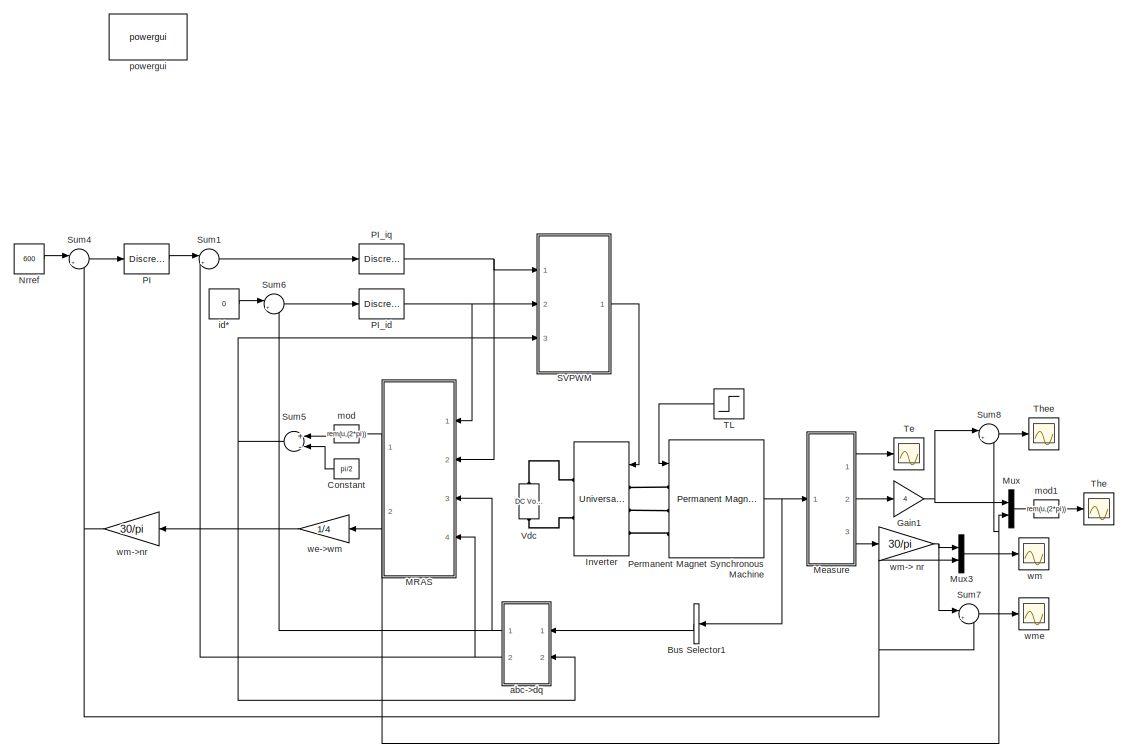
[diagram: root canvas - part 1/2, left side, full height]
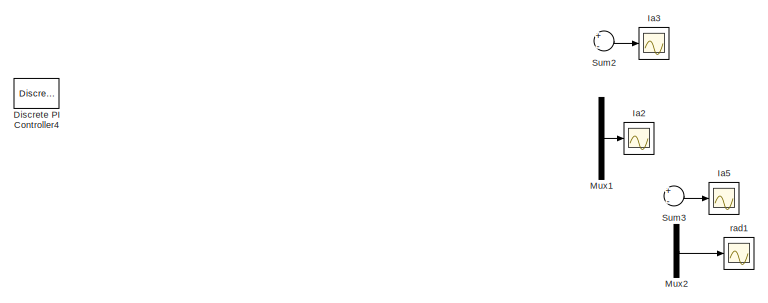
[diagram: root canvas - part 2/2, middle right region]
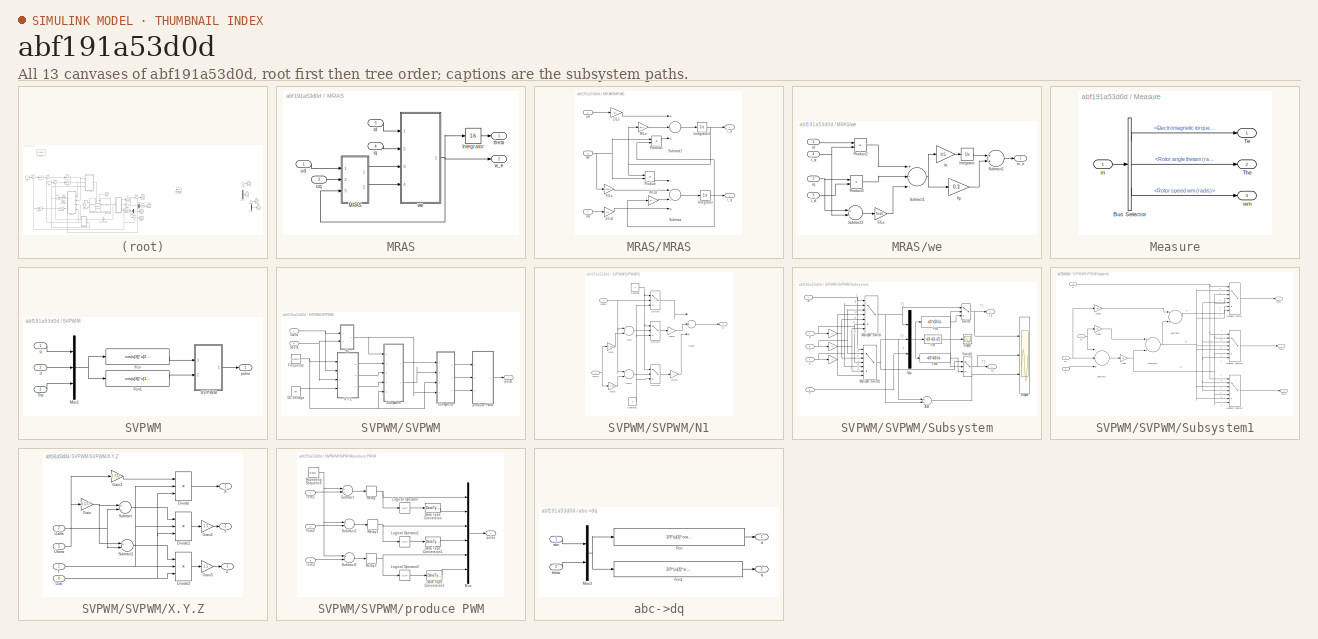
[diagram: thumbnail index - all 13 canvases of the model, root first then tree order]
MODEL slx_abf191a53d0d
KIND model
CONFIG InitFcn = L=8.5e-3;\nR=2.875;\nflux=0.175;
BLOCK [BusSelector] Bus Selector1
  OutputAsBus = on
  OutputSignals = Stator current is_a (A),Stator current is_b (A),Stator current is_c (A)
  Ports = [1, 1]
BLOCK [Constant] Constant
  Value = pi/2
BLOCK [Reference] Discrete PI Controller4  REF=powerlib_extras/Discrete 
Control Blocks/Discrete
PI Controller
  Init = 0
  Ki = 1000*4
  Kp = 1*15
  Par_Limits = [1000 -1000]
  Ports = [1, 1]
  SourceBlock = powerlib_extras/Discrete \nControl Blocks/Discrete\nPI Controller
  SourceType = Discrete PI Controller
  Ts = 10e-6
BLOCK [Gain] Gain1
  Gain = 4
  OutDataTypeStr = Inherit: Inherit via internal rule
  ParamDataTypeStr = Inherit: Inherit via internal rule
  SaturateOnIntegerOverflow = off
BLOCK [Scope] Ia2
  DataFormat = StructureWithTime
  Floating = off
  LimitDataPoints = off
  NumInputPorts = 1
  Ports = [1]
  SampleTime = 0
  SaveName = ScopeData6
  ShowLegends = off
  TimeRange = 0.1
  YMax = 6.5
  YMin = -2
  ZoomMode = xonly
BLOCK [Scope] Ia3
  DataFormat = StructureWithTime
  Floating = off
  LimitDataPoints = off
  NumInputPorts = 1
  Ports = [1]
  SampleTime = 0
  SaveName = ScopeData7
  ShowLegends = off
  TimeRange = 0.1167052469135803
  YMax = 2
  YMin = -6.5
  ZoomMode = yonly
BLOCK [Scope] Ia5
  DataFormat = StructureWithTime
  Floating = off
  LimitDataPoints = off
  NumInputPorts = 1
  Ports = [1]
  SampleTime = 0
  SaveName = ScopeData11
  ShowLegends = off
  TimeRange = 0.5
  YMax = 150
  YMin = -100
  ZoomMode = yonly
BLOCK [Reference] Inverter  REF=powerlib/Power
Electronics/Universal Bridge
  Arms = 3
  Device = IGBT / Diodes
  ForwardVoltage = 0
  ForwardVoltages = [  0  0  ]
  GTOparameters = [ 10e-6 , 20e-6 ]
  IGBTparameters = [ 1e-6 , 2e-6 ]
  Lon = 0
  Measurements = None
  Measurements_2 = None
  Ports = [1, 0, 0, 0, 0, 3, 2]
  Ron = 1e-3
  SnubberCapacitance = inf
  SnubberResistance = 1e5
  SourceBlock = powerlib/Power\nElectronics/Universal Bridge
  SourceType = Universal Bridge
  converterType = Rectifier
BLOCK [SubSystem] MRAS
  Ports = [4, 2]
  RequestExecContextInheritance = off
BLOCK [Integrator] MRAS/Integrator
  Ports = [1, 1]
BLOCK [SubSystem] MRAS/MRAS
  Ports = [3, 2]
  RequestExecContextInheritance = off
BLOCK [Gain] MRAS/MRAS/1//Ls
  Gain = 1/L
  OutDataTypeStr = Inherit: Inherit via internal rule
  ParamDataTypeStr = Inherit: Inherit via internal rule
  SaturateOnIntegerOverflow = off
BLOCK [Gain] MRAS/MRAS/1//Ls1
  Gain = 1/L
  OutDataTypeStr = Inherit: Inherit via internal rule
  ParamDataTypeStr = Inherit: Inherit via internal rule
  SaturateOnIntegerOverflow = off
BLOCK [Gain] MRAS/MRAS/F//Ls
  Gain = flux/L
  OutDataTypeStr = Inherit: Inherit via internal rule
  ParamDataTypeStr = Inherit: Inherit via internal rule
  SaturateOnIntegerOverflow = off
BLOCK [Integrator] MRAS/MRAS/Integrator
  Ports = [1, 1]
BLOCK [Integrator] MRAS/MRAS/Integrator1
  Ports = [1, 1]
BLOCK [Product] MRAS/MRAS/Product
  InputSameDT = off
  OutDataTypeStr = Inherit: Inherit via internal rule
  Ports = [2, 1]
  SaturateOnIntegerOverflow = off
BLOCK [Product] MRAS/MRAS/Product1
  InputSameDT = off
  OutDataTypeStr = Inherit: Inherit via internal rule
  Ports = [2, 1]
  SaturateOnIntegerOverflow = off
BLOCK [Gain] MRAS/MRAS/R//Ls
  Gain = R/L
  OutDataTypeStr = Inherit: Inherit via internal rule
  ParamDataTypeStr = Inherit: Inherit via internal rule
  SaturateOnIntegerOverflow = off
BLOCK [Gain] MRAS/MRAS/R//Ls1
  Gain = R/L
  OutDataTypeStr = Inherit: Inherit via internal rule
  ParamDataTypeStr = Inherit: Inherit via internal rule
  SaturateOnIntegerOverflow = off
BLOCK [Sum] MRAS/MRAS/Subtract
  InputSameDT = off
  Inputs = ---+
  OutDataTypeStr = Inherit: Inherit via internal rule
  Ports = [4, 1]
  SaturateOnIntegerOverflow = off
BLOCK [Sum] MRAS/MRAS/Subtract1
  InputSameDT = off
  Inputs = +-+
  OutDataTypeStr = Inherit: Inherit via internal rule
  Ports = [3, 1]
  SaturateOnIntegerOverflow = off
BLOCK [Outport] MRAS/MRAS/i_d
  IconDisplay = Port number
BLOCK [Outport] MRAS/MRAS/i_q
  IconDisplay = Port number
  Port = 2
BLOCK [Inport] MRAS/MRAS/ud
  IconDisplay = Port number
BLOCK [Inport] MRAS/MRAS/uq
  IconDisplay = Port number
  Port = 2
BLOCK [Inport] MRAS/MRAS/we
  IconDisplay = Port number
  Port = 3
BLOCK [Inport] MRAS/id
  IconDisplay = Port number
  Port = 3
BLOCK [Inport] MRAS/iq
  IconDisplay = Port number
  Port = 4
BLOCK [Outport] MRAS/theta
  IconDisplay = Port number
BLOCK [Inport] MRAS/ud
  IconDisplay = Port number
BLOCK [Inport] MRAS/uq
  IconDisplay = Port number
  Port = 2
BLOCK [Outport] MRAS/w_e
  IconDisplay = Port number
  Port = 2
BLOCK [SubSystem] MRAS/we
  Ports = [4, 1]
  RequestExecContextInheritance = off
BLOCK [Gain] MRAS/we/F//Ls
  Gain = flux/L
  OutDataTypeStr = Inherit: Inherit via internal rule
  ParamDataTypeStr = Inherit: Inherit via internal rule
  SaturateOnIntegerOverflow = off
BLOCK [Integrator] MRAS/we/Integrator
  Ports = [1, 1]
BLOCK [Gain] MRAS/we/Ki
  Gain = 0.5
  OutDataTypeStr = Inherit: Inherit via internal rule
  ParamDataTypeStr = Inherit: Inherit via internal rule
  SaturateOnIntegerOverflow = off
BLOCK [Gain] MRAS/we/Kp
  Gain = 0.3
  OutDataTypeStr = Inherit: Inherit via internal rule
  ParamDataTypeStr = Inherit: Inherit via internal rule
  SaturateOnIntegerOverflow = off
BLOCK [Product] MRAS/we/Product2
  InputSameDT = off
  OutDataTypeStr = Inherit: Inherit via internal rule
  Ports = [2, 1]
  SaturateOnIntegerOverflow = off
BLOCK [Product] MRAS/we/Product3
  InputSameDT = off
  OutDataTypeStr = Inherit: Inherit via internal rule
  Ports = [2, 1]
  SaturateOnIntegerOverflow = off
BLOCK [Sum] MRAS/we/Subtract1
  InputSameDT = off
  Inputs = +--
  OutDataTypeStr = Inherit: Inherit via internal rule
  Ports = [3, 1]
  SaturateOnIntegerOverflow = off
BLOCK [Sum] MRAS/we/Subtract2
  InputSameDT = off
  OutDataTypeStr = Inherit: Inherit via internal rule
  Ports = [2, 1]
  SaturateOnIntegerOverflow = off
BLOCK [Sum] MRAS/we/Subtract3
  InputSameDT = off
  Inputs = +-
  OutDataTypeStr = Inherit: Inherit via internal rule
  Ports = [2, 1]
  SaturateOnIntegerOverflow = off
BLOCK [Inport] MRAS/we/i_d
  IconDisplay = Port number
  Port = 3
BLOCK [Inport] MRAS/we/i_q
  IconDisplay = Port number
  Port = 4
BLOCK [Inport] MRAS/we/id
  IconDisplay = Port number
BLOCK [Inport] MRAS/we/iq
  IconDisplay = Port number
  Port = 2
BLOCK [Outport] MRAS/we/w_e
  IconDisplay = Port number
BLOCK [SubSystem] Measure
  Ports = [1, 3]
  RequestExecContextInheritance = off
BLOCK [BusSelector] Measure/Bus Selector
  OutputSignals = Electromagnetic torque Te (N*m),Rotor angle thetam (rad),Rotor speed wm (rad/s)
  Ports = [1, 3]
BLOCK [Outport] Measure/Te
  IconDisplay = Port number
BLOCK [Outport] Measure/The
  IconDisplay = Port number
  Port = 2
BLOCK [Inport] Measure/m
  IconDisplay = Port number
BLOCK [Outport] Measure/wm
  IconDisplay = Port number
  Port = 3
BLOCK [Mux] Mux
  DisplayOption = bar
  Inputs = 2
  Ports = [2, 1]
BLOCK [Mux] Mux1
  DisplayOption = bar
  Inputs = 2
  Ports = [2, 1]
BLOCK [Mux] Mux2
  DisplayOption = bar
  Inputs = 2
  Ports = [2, 1]
BLOCK [Mux] Mux3
  DisplayOption = bar
  Inputs = 2
  Ports = [2, 1]
BLOCK [Constant] Nrref
  Value = 600
BLOCK [Reference] PI  REF=powerlib_extras/Discrete 
Control Blocks/Discrete
PI Controller
  Init = 0
  Ki = 17.1
  Kp = 0.068
  Par_Limits = [100 -100]
  Ports = [1, 1]
  SourceBlock = powerlib_extras/Discrete \nControl Blocks/Discrete\nPI Controller
  SourceType = Discrete PI Controller
  Ts = 10e-6
BLOCK [Reference] PI_id  REF=powerlib_extras/Discrete 
Control Blocks/Discrete
PI Controller
  Init = 0
  Ki = R*2000
  Kp = L*2000
  Par_Limits = [300 -300]
  Ports = [1, 1]
  SourceBlock = powerlib_extras/Discrete \nControl Blocks/Discrete\nPI Controller
  SourceType = Discrete PI Controller
  Ts = 10e-6
BLOCK [Reference] PI_iq  REF=powerlib_extras/Discrete 
Control Blocks/Discrete
PI Controller
  Init = 0
  Ki = R*2000
  Kp = L*2000
  Par_Limits = [300 -300]
  Ports = [1, 1]
  SourceBlock = powerlib_extras/Discrete \nControl Blocks/Discrete\nPI Controller
  SourceType = Discrete PI Controller
  Ts = 10e-6
BLOCK [Reference] Permanent Magnet Synchronous Machine  REF=powerlib/Machines/Permanent Magnet
Synchronous Machine
  Flat = 120
  Flux = 0.175
  FluxDistribution = Sinusoidal
  Inductance = 8.5e-3
  InitialConditions = [0,0, 0,0]
  InitialConditions5ph = [0 0 0 0 0 0]
  La = 0.00085
  MachineConstant = Flux linkage established by magnets (V.s)
  MeasurementBus = off
  Mechanical = [4.8e-6,0,4,0]
  MechanicalLoad = Torque Tm
  NbPhases = 3
  PolePairs = 4
  Ports = [1, 1, 0, 0, 0, 3]
  PresetModel = No
  RefAngle = Aligned with phase A axis (original Park)
  Resistance = 2.875
  RotorType = Salient-pole
  ShowDetailedParameters = on
  SourceBlock = powerlib/Machines/Permanent Magnet\nSynchronous Machine
  SourceType = Permanent Magnet Synchronous Machine
  TorqueCst = 1.05
  TsBlock = -1
  TsPowergui = 0
  VoltageCst = 126.966
  dqInductances = [8.5e-3 8.5e-3]
BLOCK [SubSystem] SVPWM
  Ports = [3, 1]
  RequestExecContextInheritance = off
BLOCK [Fcn] SVPWM/Fcn
  Expr = cos(u[3])*u[2]-sin(u[3])*u[1]
BLOCK [Fcn] SVPWM/Fcn1
  Expr = cos(u[3])*u[1]+sin(u[3])*u[2]
BLOCK [Mux] SVPWM/Mux1
  DisplayOption = bar
  Inputs = 3
  Ports = [3, 1]
BLOCK [SubSystem] SVPWM/SVPWM
  Ports = [2, 1]
  RequestExecContextInheritance = off
  Tag = SVPWM
BLOCK [Constant] SVPWM/SVPWM/DC Voltage
  Value = Vdc
BLOCK [Constant] SVPWM/SVPWM/Frequence
  Value = 0.001/F
BLOCK [SubSystem] SVPWM/SVPWM/N1
  Ports = [2, 1]
  RequestExecContextInheritance = off
BLOCK [Constant] SVPWM/SVPWM/N1/Constant
BLOCK [Constant] SVPWM/SVPWM/N1/Constant1
  Value = 0
BLOCK [Gain] SVPWM/SVPWM/N1/Gain
  Gain = 1.732
  OutDataTypeStr = Inherit: Inherit via internal rule
  ParamDataTypeStr = Inherit: Inherit via internal rule
  SaturateOnIntegerOverflow = off
BLOCK [Gain] SVPWM/SVPWM/N1/Gain1
  Gain = -1.732
  OutDataTypeStr = Inherit: Inherit via internal rule
  ParamDataTypeStr = Inherit: Inherit via internal rule
  SaturateOnIntegerOverflow = off
BLOCK [Gain] SVPWM/SVPWM/N1/Gain2
  Gain = 2
  OutDataTypeStr = Inherit: Inherit via internal rule
  ParamDataTypeStr = Inherit: Inherit via internal rule
  SaturateOnIntegerOverflow = off
BLOCK [Gain] SVPWM/SVPWM/N1/Gain3
  Gain = 4
  OutDataTypeStr = Inherit: Inherit via internal rule
  ParamDataTypeStr = Inherit: Inherit via internal rule
  SaturateOnIntegerOverflow = off
BLOCK [Outport] SVPWM/SVPWM/N1/N
  IconDisplay = Port number
BLOCK [Sum] SVPWM/SVPWM/N1/Sum
  InputSameDT = off
  Inputs = |-+
  OutDataTypeStr = Inherit: Inherit via internal rule
  Ports = [2, 1]
  SaturateOnIntegerOverflow = off
BLOCK [Sum] SVPWM/SVPWM/N1/Sum1
  InputSameDT = off
  Inputs = |-+
  OutDataTypeStr = Inherit: Inherit via internal rule
  Ports = [2, 1]
  SaturateOnIntegerOverflow = off
BLOCK [Sum] SVPWM/SVPWM/N1/Sum2
  InputSameDT = off
  Inputs = |+++
  OutDataTypeStr = Inherit: Inherit via internal rule
  Ports = [3, 1]
  SaturateOnIntegerOverflow = off
BLOCK [Switch] SVPWM/SVPWM/N1/Switch
  InputSameDT = off
  SaturateOnIntegerOverflow = off
BLOCK [Switch] SVPWM/SVPWM/N1/Switch1
  InputSameDT = off
  SaturateOnIntegerOverflow = off
BLOCK [Switch] SVPWM/SVPWM/N1/Switch2
  InputSameDT = off
  SaturateOnIntegerOverflow = off
BLOCK [Inport] SVPWM/SVPWM/N1/Ualfa
  IconDisplay = Port number
BLOCK [Inport] SVPWM/SVPWM/N1/Ubeta
  IconDisplay = Port number
  Port = 2
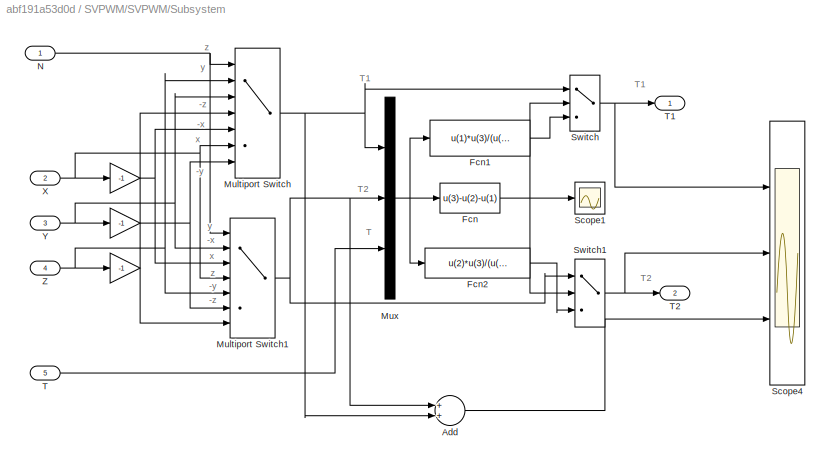
BLOCK [SubSystem] SVPWM/SVPWM/Subsystem
  Ports = [5, 2]
  RequestExecContextInheritance = off
BLOCK [Gain] SVPWM/SVPWM/Subsystem/ 
  Gain = -1
  OutDataTypeStr = Inherit: Inherit via internal rule
  ParamDataTypeStr = Inherit: Inherit via internal rule
  SaturateOnIntegerOverflow = off
BLOCK [Gain] SVPWM/SVPWM/Subsystem/  
  Gain = -1
  OutDataTypeStr = Inherit: Inherit via internal rule
  ParamDataTypeStr = Inherit: Inherit via internal rule
  SaturateOnIntegerOverflow = off
BLOCK [Gain] SVPWM/SVPWM/Subsystem/    
  Gain = -1
  OutDataTypeStr = Inherit: Inherit via internal rule
  ParamDataTypeStr = Inherit: Inherit via internal rule
  SaturateOnIntegerOverflow = off
BLOCK [Sum] SVPWM/SVPWM/Subsystem/Add
  InputSameDT = off
  OutDataTypeStr = Inherit: Inherit via internal rule
  Ports = [2, 1]
  SaturateOnIntegerOverflow = off
BLOCK [Fcn] SVPWM/SVPWM/Subsystem/Fcn
  Expr = u(3)-u(2)-u(1)
BLOCK [Fcn] SVPWM/SVPWM/Subsystem/Fcn1
  Expr = u(1)*u(3)/(u(1)+u(2))
BLOCK [Fcn] SVPWM/SVPWM/Subsystem/Fcn2
  Expr = u(2)*u(3)/(u(1)+u(2))
BLOCK [MultiPortSwitch] SVPWM/SVPWM/Subsystem/Multiport Switch
  DiagnosticForDefault = None
  InputSameDT = off
  Inputs = 6
  Ports = [7, 1]
  SaturateOnIntegerOverflow = off
BLOCK [MultiPortSwitch] SVPWM/SVPWM/Subsystem/Multiport Switch1
  DiagnosticForDefault = None
  InputSameDT = off
  Inputs = 6
  Ports = [7, 1]
  SaturateOnIntegerOverflow = off
BLOCK [Mux] SVPWM/SVPWM/Subsystem/Mux
  DisplayOption = bar
  Inputs = 3
  Ports = [3, 1]
BLOCK [Inport] SVPWM/SVPWM/Subsystem/N
  IconDisplay = Port number
BLOCK [Scope] SVPWM/SVPWM/Subsystem/Scope1
  DataFormat = StructureWithTime
  Floating = off
  LimitDataPoints = off
  NumInputPorts = 1
  Ports = [1]
  SampleTime = 0
  SaveName = ScopeData16
  ShowLegends = off
  YMax = 6
  YMin = 2
  ZoomMode = xonly
BLOCK [Scope] SVPWM/SVPWM/Subsystem/Scope4
  DataFormat = StructureWithTime
  Floating = off
  LimitDataPoints = off
  NumInputPorts = 3
  Ports = [3]
  SampleTime = 0
  SaveName = ScopeData4
  ShowLegends = off
  TimeRange = 0.5
  YMax = 9.999999999999999e-05~9.999999999999999e-05~0.008
  YMin = -5e-05~-5e-05~0
  ZoomMode = xonly
BLOCK [Switch] SVPWM/SVPWM/Subsystem/Switch
  Criteria = u2 > Threshold
  InputSameDT = off
  SaturateOnIntegerOverflow = off
BLOCK [Switch] SVPWM/SVPWM/Subsystem/Switch1
  Criteria = u2 > Threshold
  InputSameDT = off
  SaturateOnIntegerOverflow = off
BLOCK [Inport] SVPWM/SVPWM/Subsystem/T
  IconDisplay = Port number
  Port = 5
BLOCK [Outport] SVPWM/SVPWM/Subsystem/T1
  IconDisplay = Port number
BLOCK [Outport] SVPWM/SVPWM/Subsystem/T2
  IconDisplay = Port number
  Port = 2
BLOCK [Inport] SVPWM/SVPWM/Subsystem/X
  IconDisplay = Port number
  Port = 2
BLOCK [Inport] SVPWM/SVPWM/Subsystem/Y
  IconDisplay = Port number
  Port = 3
BLOCK [Inport] SVPWM/SVPWM/Subsystem/Z
  IconDisplay = Port number
  Port = 4
BLOCK [SubSystem] SVPWM/SVPWM/Subsystem1
  Ports = [4, 3]
  RequestExecContextInheritance = off
BLOCK [Gain] SVPWM/SVPWM/Subsystem1/Gain1
  Gain = 1/4
  OutDataTypeStr = Inherit: Inherit via internal rule
  ParamDataTypeStr = Inherit: Inherit via internal rule
  SaturateOnIntegerOverflow = off
BLOCK [Gain] SVPWM/SVPWM/Subsystem1/Gain2
  Gain = 0.5
  OutDataTypeStr = Inherit: Inherit via internal rule
  ParamDataTypeStr = Inherit: Inherit via internal rule
  SaturateOnIntegerOverflow = off
BLOCK [Gain] SVPWM/SVPWM/Subsystem1/Gain3
  Gain = 0.5
  OutDataTypeStr = Inherit: Inherit via internal rule
  ParamDataTypeStr = Inherit: Inherit via internal rule
  SaturateOnIntegerOverflow = off
BLOCK [MultiPortSwitch] SVPWM/SVPWM/Subsystem1/Multiport Switch
  DiagnosticForDefault = None
  InputSameDT = off
  Inputs = 6
  Ports = [7, 1]
  SaturateOnIntegerOverflow = off
BLOCK [MultiPortSwitch] SVPWM/SVPWM/Subsystem1/Multiport Switch1
  DiagnosticForDefault = None
  InputSameDT = off
  Inputs = 6
  Ports = [7, 1]
  SaturateOnIntegerOverflow = off
BLOCK [MultiPortSwitch] SVPWM/SVPWM/Subsystem1/Multiport Switch2
  DiagnosticForDefault = None
  InputSameDT = off
  Inputs = 6
  Ports = [7, 1]
  SaturateOnIntegerOverflow = off
BLOCK [Inport] SVPWM/SVPWM/Subsystem1/N
  IconDisplay = Port number
  Port = 4
BLOCK [Sum] SVPWM/SVPWM/Subsystem1/Subtract1
  InputSameDT = off
  Inputs = --+
  OutDataTypeStr = Inherit: Inherit via internal rule
  Ports = [3, 1]
  SaturateOnIntegerOverflow = off
BLOCK [Sum] SVPWM/SVPWM/Subsystem1/Subtract2
  InputSameDT = off
  OutDataTypeStr = Inherit: Inherit via internal rule
  Ports = [2, 1]
  SaturateOnIntegerOverflow = off
BLOCK [Sum] SVPWM/SVPWM/Subsystem1/Subtract3
  InputSameDT = off
  OutDataTypeStr = Inherit: Inherit via internal rule
  Ports = [2, 1]
  SaturateOnIntegerOverflow = off
BLOCK [Inport] SVPWM/SVPWM/Subsystem1/T
  IconDisplay = Port number
  Port = 3
BLOCK [Inport] SVPWM/SVPWM/Subsystem1/T1
  IconDisplay = Port number
BLOCK [Inport] SVPWM/SVPWM/Subsystem1/T2
  IconDisplay = Port number
  Port = 2
BLOCK [Outport] SVPWM/SVPWM/Subsystem1/Tcm1
  IconDisplay = Port number
BLOCK [Outport] SVPWM/SVPWM/Subsystem1/Tcm2
  IconDisplay = Port number
  Port = 2
BLOCK [Outport] SVPWM/SVPWM/Subsystem1/Tcm3
  IconDisplay = Port number
  Port = 3
BLOCK [Inport] SVPWM/SVPWM/Ualfa
  IconDisplay = Port number
BLOCK [Inport] SVPWM/SVPWM/Ubeta
  IconDisplay = Port number
  Port = 2
BLOCK [SubSystem] SVPWM/SVPWM/X.Y.Z
  Ports = [4, 3]
  RequestExecContextInheritance = off
BLOCK [Product] SVPWM/SVPWM/X.Y.Z/Divide
  InputSameDT = off
  Inputs = **/
  OutDataTypeStr = Inherit: Inherit via internal rule
  Ports = [3, 1]
  RndMeth = Floor
  SaturateOnIntegerOverflow = off
BLOCK [Product] SVPWM/SVPWM/X.Y.Z/Divide1
  InputSameDT = off
  Inputs = **/
  OutDataTypeStr = Inherit: Inherit via internal rule
  Ports = [3, 1]
  RndMeth = Floor
  SaturateOnIntegerOverflow = off
BLOCK [Product] SVPWM/SVPWM/X.Y.Z/Divide2
  InputSameDT = off
  Inputs = **/
  OutDataTypeStr = Inherit: Inherit via internal rule
  Ports = [3, 1]
  RndMeth = Floor
  SaturateOnIntegerOverflow = off
BLOCK [Gain] SVPWM/SVPWM/X.Y.Z/Gain
  Gain = 0.577
  OutDataTypeStr = Inherit: Inherit via internal rule
  ParamDataTypeStr = Inherit: Inherit via internal rule
  SaturateOnIntegerOverflow = off
BLOCK [Gain] SVPWM/SVPWM/X.Y.Z/Gain1
  Gain = 1.732
  OutDataTypeStr = Inherit: Inherit via internal rule
  ParamDataTypeStr = Inherit: Inherit via internal rule
  SaturateOnIntegerOverflow = off
BLOCK [Gain] SVPWM/SVPWM/X.Y.Z/Gain2
  Gain = 1.5
  OutDataTypeStr = Inherit: Inherit via internal rule
  ParamDataTypeStr = Inherit: Inherit via internal rule
  SaturateOnIntegerOverflow = off
BLOCK [Gain] SVPWM/SVPWM/X.Y.Z/Gain3
  Gain = 1.5
  OutDataTypeStr = Inherit: Inherit via internal rule
  ParamDataTypeStr = Inherit: Inherit via internal rule
  SaturateOnIntegerOverflow = off
BLOCK [Sum] SVPWM/SVPWM/X.Y.Z/Subtract
  InputSameDT = off
  OutDataTypeStr = Inherit: Inherit via internal rule
  Ports = [2, 1]
  SaturateOnIntegerOverflow = off
BLOCK [Sum] SVPWM/SVPWM/X.Y.Z/Subtract1
  InputSameDT = off
  Inputs = +-
  OutDataTypeStr = Inherit: Inherit via internal rule
  Ports = [2, 1]
  SaturateOnIntegerOverflow = off
BLOCK [Inport] SVPWM/SVPWM/X.Y.Z/T
  IconDisplay = Port number
BLOCK [Inport] SVPWM/SVPWM/X.Y.Z/Ualfa
  IconDisplay = Port number
  Port = 2
BLOCK [Inport] SVPWM/SVPWM/X.Y.Z/Ubeta
  IconDisplay = Port number
  Port = 3
BLOCK [Inport] SVPWM/SVPWM/X.Y.Z/Udc
  IconDisplay = Port number
  Port = 4
BLOCK [Outport] SVPWM/SVPWM/X.Y.Z/X
  IconDisplay = Port number
BLOCK [Outport] SVPWM/SVPWM/X.Y.Z/Y
  IconDisplay = Port number
  Port = 2
BLOCK [Outport] SVPWM/SVPWM/X.Y.Z/Z
  IconDisplay = Port number
  Port = 3
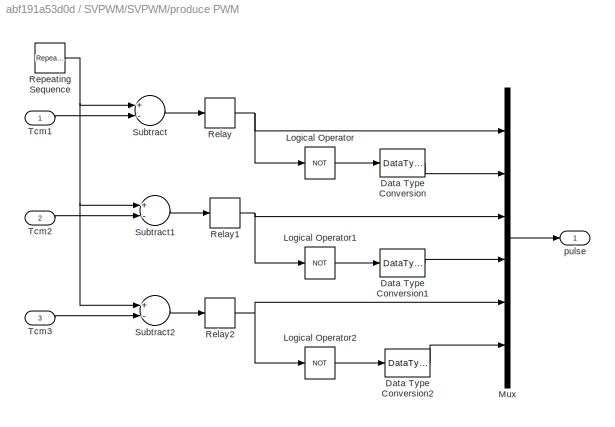
BLOCK [SubSystem] SVPWM/SVPWM/produce PWM
  Ports = [3, 1]
  RequestExecContextInheritance = off
BLOCK [DataTypeConversion] SVPWM/SVPWM/produce PWM/Data Type Conversion
  OutDataTypeStr = double
  RndMeth = Floor
  SaturateOnIntegerOverflow = off
BLOCK [DataTypeConversion] SVPWM/SVPWM/produce PWM/Data Type Conversion1
  OutDataTypeStr = double
  RndMeth = Floor
  SaturateOnIntegerOverflow = off
BLOCK [DataTypeConversion] SVPWM/SVPWM/produce PWM/Data Type Conversion2
  OutDataTypeStr = double
  RndMeth = Floor
  SaturateOnIntegerOverflow = off
BLOCK [Logic] SVPWM/SVPWM/produce PWM/Logical Operator
  AllPortsSameDT = off
  Operator = NOT
  Ports = [1, 1]
BLOCK [Logic] SVPWM/SVPWM/produce PWM/Logical Operator1
  AllPortsSameDT = off
  Operator = NOT
  Ports = [1, 1]
BLOCK [Logic] SVPWM/SVPWM/produce PWM/Logical Operator2
  AllPortsSameDT = off
  Operator = NOT
  Ports = [1, 1]
BLOCK [Mux] SVPWM/SVPWM/produce PWM/Mux
  DisplayOption = bar
  Inputs = 6
  Ports = [6, 1]
BLOCK [Relay] SVPWM/SVPWM/produce PWM/Relay
BLOCK [Relay] SVPWM/SVPWM/produce PWM/Relay1
BLOCK [Relay] SVPWM/SVPWM/produce PWM/Relay2
BLOCK [Reference] SVPWM/SVPWM/produce PWM/Repeating Sequence  REF=simulink/Sources/Repeating
Sequence
  Ports = [0, 1]
  SourceBlock = simulink/Sources/Repeating\nSequence
  SourceType = Repeating table
  rep_seq_t = [0 0.001/F 0.002/F]
  rep_seq_y = [0 0.001/F 0]
BLOCK [Sum] SVPWM/SVPWM/produce PWM/Subtract
  InputSameDT = off
  Inputs = +-
  OutDataTypeStr = Inherit: Inherit via internal rule
  Ports = [2, 1]
  SaturateOnIntegerOverflow = off
BLOCK [Sum] SVPWM/SVPWM/produce PWM/Subtract1
  InputSameDT = off
  Inputs = +-
  OutDataTypeStr = Inherit: Inherit via internal rule
  Ports = [2, 1]
  SaturateOnIntegerOverflow = off
BLOCK [Sum] SVPWM/SVPWM/produce PWM/Subtract2
  InputSameDT = off
  Inputs = +-
  OutDataTypeStr = Inherit: Inherit via internal rule
  Ports = [2, 1]
  SaturateOnIntegerOverflow = off
BLOCK [Inport] SVPWM/SVPWM/produce PWM/Tcm1
  IconDisplay = Port number
BLOCK [Inport] SVPWM/SVPWM/produce PWM/Tcm2
  IconDisplay = Port number
  Port = 2
BLOCK [Inport] SVPWM/SVPWM/produce PWM/Tcm3
  IconDisplay = Port number
  Port = 3
BLOCK [Outport] SVPWM/SVPWM/produce PWM/pulse
  IconDisplay = Port number
BLOCK [Outport] SVPWM/SVPWM/pulse
  IconDisplay = Port number
BLOCK [Inport] SVPWM/The
  IconDisplay = Port number
  Port = 3
BLOCK [Inport] SVPWM/d
  IconDisplay = Port number
  Port = 2
BLOCK [Outport] SVPWM/pulse
  IconDisplay = Port number
BLOCK [Inport] SVPWM/q
  IconDisplay = Port number
BLOCK [Sum] Sum1
  IconShape = round
  InputSameDT = off
  Inputs = |+-
  OutDataTypeStr = Inherit: Inherit via internal rule
  Ports = [2, 1]
  SaturateOnIntegerOverflow = off
BLOCK [Sum] Sum2
  InputSameDT = off
  Inputs = +-
  OutDataTypeStr = Inherit: Inherit via internal rule
  Ports = [2, 1]
  SaturateOnIntegerOverflow = off
BLOCK [Sum] Sum3
  InputSameDT = off
  Inputs = +-
  OutDataTypeStr = Inherit: Inherit via internal rule
  Ports = [2, 1]
  SaturateOnIntegerOverflow = off
BLOCK [Sum] Sum4
  IconShape = round
  InputSameDT = off
  Inputs = |+-
  OutDataTypeStr = Inherit: Inherit via internal rule
  Ports = [2, 1]
  SaturateOnIntegerOverflow = off
BLOCK [Sum] Sum5
  InputSameDT = off
  Inputs = +-
  OutDataTypeStr = Inherit: Inherit via internal rule
  Ports = [2, 1]
  SaturateOnIntegerOverflow = off
BLOCK [Sum] Sum6
  IconShape = round
  InputSameDT = off
  Inputs = |+-
  OutDataTypeStr = Inherit: Inherit via internal rule
  Ports = [2, 1]
  SaturateOnIntegerOverflow = off
BLOCK [Sum] Sum7
  IconShape = round
  InputSameDT = off
  Inputs = |+-
  OutDataTypeStr = Inherit: Inherit via internal rule
  Ports = [2, 1]
  SaturateOnIntegerOverflow = off
BLOCK [Sum] Sum8
  IconShape = round
  InputSameDT = off
  Inputs = |+-
  OutDataTypeStr = Inherit: Inherit via internal rule
  Ports = [2, 1]
  SaturateOnIntegerOverflow = off
BLOCK [Step] TL
  After = 0
  SampleTime = 0
  Time = 0.3
BLOCK [Scope] Te
  DataFormat = StructureWithTime
  Floating = off
  LimitDataPoints = off
  NumInputPorts = 1
  Ports = [1]
  SampleTime = 0
  SaveName = ScopeData10
  ShowLegends = off
  TimeRange = 0.01478751540608518
  YMax = 7.5e-19
  YMin = -7.5e-19
  ZoomMode = yonly
BLOCK [Scope] The
  DataFormat = StructureWithTime
  Floating = off
  LimitDataPoints = off
  NumInputPorts = 1
  Ports = [1]
  SampleTime = 0
  SaveName = The
  SaveToWorkspace = on
  ShowLegends = off
  YMax = 6.2
  YMin = 4.8
  ZoomMode = xonly
BLOCK [Scope] Thee
  DataFormat = StructureWithTime
  Floating = off
  LimitDataPoints = off
  NumInputPorts = 1
  Ports = [1]
  SampleTime = 0
  SaveName = The1
  SaveToWorkspace = on
  ShowLegends = off
  YMax = 0.05
  YMin = -0.4
  ZoomMode = xonly
BLOCK [Reference] Vdc  REF=powerlib/Electrical
Sources/DC Voltage Source
  Amplitude = 311
  Measurements = None
  Ports = [0, 0, 0, 0, 0, 1, 1]
  SourceBlock = powerlib/Electrical\nSources/DC Voltage Source
  SourceType = DC Voltage Source
BLOCK [SubSystem] abc->dq
  Ports = [2, 2]
  RequestExecContextInheritance = off
BLOCK [Fcn] abc->dq/Fcn
  Expr = 2/3*(u[1]*cos(u[4])+u[2]*cos(u[4]-2*pi/3)+u[3]*cos(u[4]+2*pi/3))
BLOCK [Fcn] abc->dq/Fcn1
  Expr = 2/3*(-u[1]*sin(u[4])-u[2]*sin(u[4]-2*pi/3)-u[3]*sin(u[4]+2*pi/3))
BLOCK [Mux] abc->dq/Mux3
  DisplayOption = bar
  Inputs = 2
  Ports = [2, 1]
BLOCK [Inport] abc->dq/abc
  IconDisplay = Port number
BLOCK [Outport] abc->dq/d
  IconDisplay = Port number
BLOCK [Outport] abc->dq/q
  IconDisplay = Port number
  Port = 2
BLOCK [Inport] abc->dq/theta
  IconDisplay = Port number
  Port = 2
BLOCK [Constant] id*
  Value = 0
BLOCK [Fcn] mod
  Expr = rem(u,(2*pi))
BLOCK [Fcn] mod1
  Expr = rem(u,(2*pi))
BLOCK [Reference] powergui  REF=powerlib/powergui
  DisableRonSwitches = off
  DisableSnubberDevices = off
  DisableVfSwitches = off
  DisplayEquations = off
  DisplayStyle = 1
  EnableUseOfTLC = off
  ErrMax = 1e-4
  Frange = [0:2:500]
  FreqAxis = off
  FunctionMessages = off
  HookPort = off
  Interpol = off
  Iterations = 50
  MaxFrequency = 1000
  Pbase = 100e6
  Ports = []
  Priority = 1
  ResistiveCurrentMeasurement = off
  RestoreLinks = warning
  RmsSteady = 1
  SPID = off
  SampleTime = 1e-6
  ShowGrid = off
  SolverType = Tustin
  SourceBlock = powerlib/powergui
  SourceType = PSB option menu block
  StartTime = 0.0
  SwTol = 0
  Ts = 0
  UnitsV = kV
  UnitsW = MW
  UserDataPersistent = on
  Xlog = on
  Ylog = off
  ZoomFFT = off
  cycles = 1
  display = off
  echomessages = off
  frequency = 60
  frequencyindice = 0
  frequencyindicesteady = 1
  fundamental = 60
  methode = off
  save = off
  structure = 0
  variable = ZData
  x0status = blocks
BLOCK [Scope] rad1
  DataFormat = StructureWithTime
  Floating = off
  LimitDataPoints = off
  NumInputPorts = 1
  Ports = [1]
  SampleTime = 0
  SaveName = ScopeData9
  ShowLegends = off
  TimeRange = 0.1
  YMax = 110
  YMin = 20
  ZoomMode = yonly
BLOCK [Gain] we->wm
  Gain = 1/4
  OutDataTypeStr = Inherit: Inherit via internal rule
  ParamDataTypeStr = Inherit: Inherit via internal rule
  SaturateOnIntegerOverflow = off
BLOCK [Scope] wm
  DataFormat = StructureWithTime
  Floating = off
  LimitDataPoints = off
  NumInputPorts = 1
  Ports = [1]
  SampleTime = 0
  SaveName = wm
  SaveToWorkspace = on
  ShowLegends = off
  TimeRange = 0.4
  YMax = 1200
  YMin = -200
  ZoomMode = yonly
BLOCK [Gain] wm-> nr
  Gain = 30/pi
  OutDataTypeStr = Inherit: Inherit via internal rule
  ParamDataTypeStr = Inherit: Inherit via internal rule
  SaturateOnIntegerOverflow = off
BLOCK [Gain] wm->nr
  Gain = 30/pi
  OutDataTypeStr = Inherit: Inherit via internal rule
  ParamDataTypeStr = Inherit: Inherit via internal rule
  SaturateOnIntegerOverflow = off
BLOCK [Scope] wme
  DataFormat = StructureWithTime
  Floating = off
  LimitDataPoints = off
  NumInputPorts = 1
  Ports = [1]
  SampleTime = 0
  SaveName = wm1
  SaveToWorkspace = on
  ShowLegends = off
  TimeRange = 0.4
  YMax = 300
  YMin = -400
  ZoomMode = yonly
ANNOTATION SVPWM/SVPWM/Subsystem: -x
ANNOTATION SVPWM/SVPWM/Subsystem: -y
ANNOTATION SVPWM/SVPWM/Subsystem: -z
ANNOTATION SVPWM/SVPWM/Subsystem: T
ANNOTATION SVPWM/SVPWM/Subsystem: T1
ANNOTATION SVPWM/SVPWM/Subsystem: T2
ANNOTATION SVPWM/SVPWM/Subsystem: x
ANNOTATION SVPWM/SVPWM/Subsystem: y
ANNOTATION SVPWM/SVPWM/Subsystem: z
ANNOTATION SVPWM/SVPWM/Subsystem1: Ta
ANNOTATION SVPWM/SVPWM/Subsystem1: Tb
ANNOTATION SVPWM/SVPWM/Subsystem1: Tc
ANNOTATION SVPWM/SVPWM/Subsystem1: a
ANNOTATION SVPWM/SVPWM/Subsystem1: b
ANNOTATION SVPWM/SVPWM/Subsystem1: c
LINE Bus Selector1:1 -> abc->dq:1
LINE Constant:1 -> Sum5:2
NET Gain1:1 -> Mux:1, Sum8:1
LINE MRAS/Integrator:1 -> MRAS/theta:1
LINE MRAS/MRAS/1//Ls1:1 -> MRAS/MRAS/Subtract:4
LINE MRAS/MRAS/1//Ls:1 -> MRAS/MRAS/Subtract1:1
LINE MRAS/MRAS/F//Ls:1 -> MRAS/MRAS/Subtract:2
NET MRAS/MRAS/Integrator1:1 -> MRAS/MRAS/Product:1, MRAS/MRAS/R//Ls:1, MRAS/MRAS/i_d:1
NET MRAS/MRAS/Integrator:1 -> MRAS/MRAS/Product1:2, MRAS/MRAS/R//Ls1:1, MRAS/MRAS/i_q:1
LINE MRAS/MRAS/Product1:1 -> MRAS/MRAS/Subtract1:3
LINE MRAS/MRAS/Product:1 -> MRAS/MRAS/Subtract:1
LINE MRAS/MRAS/R//Ls1:1 -> MRAS/MRAS/Subtract:3
LINE MRAS/MRAS/R//Ls:1 -> MRAS/MRAS/Subtract1:2
LINE MRAS/MRAS/Subtract1:1 -> MRAS/MRAS/Integrator1:1
LINE MRAS/MRAS/Subtract:1 -> MRAS/MRAS/Integrator:1
LINE MRAS/MRAS/ud:1 -> MRAS/MRAS/1//Ls:1
LINE MRAS/MRAS/uq:1 -> MRAS/MRAS/1//Ls1:1
NET MRAS/MRAS/we:1 -> MRAS/MRAS/F//Ls:1, MRAS/MRAS/Product1:1, MRAS/MRAS/Product:2
LINE MRAS/MRAS:1 -> MRAS/we:3
LINE MRAS/MRAS:2 -> MRAS/we:4
LINE MRAS/id:1 -> MRAS/we:1
LINE MRAS/iq:1 -> MRAS/we:2
LINE MRAS/ud:1 -> MRAS/MRAS:1
LINE MRAS/uq:1 -> MRAS/MRAS:2
LINE MRAS/we/F//Ls:1 -> MRAS/we/Subtract1:3
LINE MRAS/we/Integrator:1 -> MRAS/we/Subtract2:1
LINE MRAS/we/Ki:1 -> MRAS/we/Integrator:1
LINE MRAS/we/Kp:1 -> MRAS/we/Subtract2:2
LINE MRAS/we/Product2:1 -> MRAS/we/Subtract1:1
LINE MRAS/we/Product3:1 -> MRAS/we/Subtract1:2
NET MRAS/we/Subtract1:1 -> MRAS/we/Ki:1, MRAS/we/Kp:1
LINE MRAS/we/Subtract2:1 -> MRAS/we/w_e:1
LINE MRAS/we/Subtract3:1 -> MRAS/we/F//Ls:1
LINE MRAS/we/i_d:1 -> MRAS/we/Product3:2
NET MRAS/we/i_q:1 -> MRAS/we/Product2:2, MRAS/we/Subtract3:2
LINE MRAS/we/id:1 -> MRAS/we/Product2:1
NET MRAS/we/iq:1 -> MRAS/we/Product3:1, MRAS/we/Subtract3:1
NET MRAS/we:1 -> MRAS/Integrator:1, MRAS/MRAS:3, MRAS/w_e:1
NET MRAS:1 -> Mux:2, Sum8:2, mod:1
LINE MRAS:2 -> we->wm:1
LINE Measure/Bus Selector:1 -> Measure/Te:1
LINE Measure/Bus Selector:2 -> Measure/The:1
LINE Measure/Bus Selector:3 -> Measure/wm:1
LINE Measure/m:1 -> Measure/Bus Selector:1
LINE Measure:1 -> Te:1
LINE Measure:2 -> Gain1:1
LINE Measure:3 -> wm-> nr:1
LINE Mux1:1 -> Ia2:1
LINE Mux2:1 -> rad1:1
LINE Mux3:1 -> wm:1
LINE Mux:1 -> mod1:1
LINE Nrref:1 -> Sum4:1
LINE PI:1 -> Sum1:1
NET PI_id:1 -> MRAS:1, SVPWM:2
NET PI_iq:1 -> MRAS:2, SVPWM:1
NET Permanent Magnet Synchronous Machine:1 -> Bus Selector1:1, Measure:1
LINE SVPWM/Fcn1:1 -> SVPWM/SVPWM:2
LINE SVPWM/Fcn:1 -> SVPWM/SVPWM:1
NET SVPWM/Mux1:1 -> SVPWM/Fcn1:1, SVPWM/Fcn:1
LINE SVPWM/SVPWM/DC Voltage:1 -> SVPWM/SVPWM/X.Y.Z:4
NET SVPWM/SVPWM/Frequence:1 -> SVPWM/SVPWM/Subsystem1:3, SVPWM/SVPWM/Subsystem:5, SVPWM/SVPWM/X.Y.Z:1
NET SVPWM/SVPWM/N1/Constant1:1 -> SVPWM/SVPWM/N1/Switch1:3, SVPWM/SVPWM/N1/Switch2:3, SVPWM/SVPWM/N1/Switch:3
NET SVPWM/SVPWM/N1/Constant:1 -> SVPWM/SVPWM/N1/Switch1:1, SVPWM/SVPWM/N1/Switch2:1, SVPWM/SVPWM/N1/Switch:1
LINE SVPWM/SVPWM/N1/Gain1:1 -> SVPWM/SVPWM/N1/Sum1:2
LINE SVPWM/SVPWM/N1/Gain2:1 -> SVPWM/SVPWM/N1/Sum2:2
LINE SVPWM/SVPWM/N1/Gain3:1 -> SVPWM/SVPWM/N1/Sum2:3
LINE SVPWM/SVPWM/N1/Gain:1 -> SVPWM/SVPWM/N1/Sum:2
LINE SVPWM/SVPWM/N1/Sum1:1 -> SVPWM/SVPWM/N1/Switch2:2
LINE SVPWM/SVPWM/N1/Sum2:1 -> SVPWM/SVPWM/N1/N:1
LINE SVPWM/SVPWM/N1/Sum:1 -> SVPWM/SVPWM/N1/Switch1:2
LINE SVPWM/SVPWM/N1/Switch1:1 -> SVPWM/SVPWM/N1/Gain2:1
LINE SVPWM/SVPWM/N1/Switch2:1 -> SVPWM/SVPWM/N1/Gain3:1
LINE SVPWM/SVPWM/N1/Switch:1 -> SVPWM/SVPWM/N1/Sum2:1
NET SVPWM/SVPWM/N1/Ualfa:1 -> SVPWM/SVPWM/N1/Gain1:1, SVPWM/SVPWM/N1/Gain:1
NET SVPWM/SVPWM/N1/Ubeta:1 -> SVPWM/SVPWM/N1/Sum1:1, SVPWM/SVPWM/N1/Sum:1, SVPWM/SVPWM/N1/Switch:2
NET SVPWM/SVPWM/N1:1 -> SVPWM/SVPWM/Subsystem1:4, SVPWM/SVPWM/Subsystem:1
NET SVPWM/SVPWM/Subsystem/    :1 -> SVPWM/SVPWM/Subsystem/Multiport Switch1:7, SVPWM/SVPWM/Subsystem/Multiport Switch:4
NET SVPWM/SVPWM/Subsystem/  :1 -> SVPWM/SVPWM/Subsystem/Multiport Switch1:6, SVPWM/SVPWM/Subsystem/Multiport Switch:7
NET SVPWM/SVPWM/Subsystem/ :1 -> SVPWM/SVPWM/Subsystem/Multiport Switch1:3, SVPWM/SVPWM/Subsystem/Multiport Switch:5
LINE SVPWM/SVPWM/Subsystem/Add:1 -> SVPWM/SVPWM/Subsystem/Scope4:3
LINE SVPWM/SVPWM/Subsystem/Fcn1:1 -> SVPWM/SVPWM/Subsystem/Switch:3
LINE SVPWM/SVPWM/Subsystem/Fcn2:1 -> SVPWM/SVPWM/Subsystem/Switch1:3
NET SVPWM/SVPWM/Subsystem/Fcn:1 -> SVPWM/SVPWM/Subsystem/Scope1:1, SVPWM/SVPWM/Subsystem/Switch1:2, SVPWM/SVPWM/Subsystem/Switch:2
NET SVPWM/SVPWM/Subsystem/Multiport Switch1:1 -> SVPWM/SVPWM/Subsystem/Add:1, SVPWM/SVPWM/Subsystem/Mux:2, SVPWM/SVPWM/Subsystem/Switch1:1
NET SVPWM/SVPWM/Subsystem/Multiport Switch:1 -> SVPWM/SVPWM/Subsystem/Add:2, SVPWM/SVPWM/Subsystem/Mux:1, SVPWM/SVPWM/Subsystem/Switch:1
NET SVPWM/SVPWM/Subsystem/Mux:1 -> SVPWM/SVPWM/Subsystem/Fcn1:1, SVPWM/SVPWM/Subsystem/Fcn2:1, SVPWM/SVPWM/Subsystem/Fcn:1
NET SVPWM/SVPWM/Subsystem/N:1 -> SVPWM/SVPWM/Subsystem/Multiport Switch1:1, SVPWM/SVPWM/Subsystem/Multiport Switch:1
NET SVPWM/SVPWM/Subsystem/Switch1:1 -> SVPWM/SVPWM/Subsystem/Scope4:2, SVPWM/SVPWM/Subsystem/T2:1
NET SVPWM/SVPWM/Subsystem/Switch:1 -> SVPWM/SVPWM/Subsystem/Scope4:1, SVPWM/SVPWM/Subsystem/T1:1
LINE SVPWM/SVPWM/Subsystem/T:1 -> SVPWM/SVPWM/Subsystem/Mux:3
NET SVPWM/SVPWM/Subsystem/X:1 -> SVPWM/SVPWM/Subsystem/ :1, SVPWM/SVPWM/Subsystem/Multiport Switch1:4, SVPWM/SVPWM/Subsystem/Multiport Switch:6
NET SVPWM/SVPWM/Subsystem/Y:1 -> SVPWM/SVPWM/Subsystem/  :1, SVPWM/SVPWM/Subsystem/Multiport Switch1:2, SVPWM/SVPWM/Subsystem/Multiport Switch:3
NET SVPWM/SVPWM/Subsystem/Z:1 -> SVPWM/SVPWM/Subsystem/    :1, SVPWM/SVPWM/Subsystem/Multiport Switch1:5, SVPWM/SVPWM/Subsystem/Multiport Switch:2
NET SVPWM/SVPWM/Subsystem1/Gain1:1 -> SVPWM/SVPWM/Subsystem1/Multiport Switch1:2, SVPWM/SVPWM/Subsystem1/Multiport Switch1:6, SVPWM/SVPWM/Subsystem1/Multiport Switch2:5, SVPWM/SVPWM/Subsystem1/Multiport Switch2:7, SVPWM/SVPWM/Subsystem1/Multiport Switch:3, SVPWM/SVPWM/Subsystem1/Multiport Switch:4, SVPWM/SVPWM/Subsystem1/Subtract2:2
LINE SVPWM/SVPWM/Subsystem1/Gain2:1 -> SVPWM/SVPWM/Subsystem1/Subtract3:1
LINE SVPWM/SVPWM/Subsystem1/Gain3:1 -> SVPWM/SVPWM/Subsystem1/Subtract2:1
LINE SVPWM/SVPWM/Subsystem1/Multiport Switch1:1 -> SVPWM/SVPWM/Subsystem1/Tcm2:1
LINE SVPWM/SVPWM/Subsystem1/Multiport Switch2:1 -> SVPWM/SVPWM/Subsystem1/Tcm3:1
LINE SVPWM/SVPWM/Subsystem1/Multiport Switch:1 -> SVPWM/SVPWM/Subsystem1/Tcm1:1
NET SVPWM/SVPWM/Subsystem1/N:1 -> SVPWM/SVPWM/Subsystem1/Multiport Switch1:1, SVPWM/SVPWM/Subsystem1/Multiport Switch2:1, SVPWM/SVPWM/Subsystem1/Multiport Switch:1
LINE SVPWM/SVPWM/Subsystem1/Subtract1:1 -> SVPWM/SVPWM/Subsystem1/Gain1:1
NET SVPWM/SVPWM/Subsystem1/Subtract2:1 -> SVPWM/SVPWM/Subsystem1/Multiport Switch1:4, SVPWM/SVPWM/Subsystem1/Multiport Switch1:5, SVPWM/SVPWM/Subsystem1/Multiport Switch2:3, SVPWM/SVPWM/Subsystem1/Multiport Switch2:6, SVPWM/SVPWM/Subsystem1/Multiport Switch:2, SVPWM/SVPWM/Subsystem1/Multiport Switch:7, SVPWM/SVPWM/Subsystem1/Subtract3:2
NET SVPWM/SVPWM/Subsystem1/Subtract3:1 -> SVPWM/SVPWM/Subsystem1/Multiport Switch1:3, SVPWM/SVPWM/Subsystem1/Multiport Switch1:7, SVPWM/SVPWM/Subsystem1/Multiport Switch2:2, SVPWM/SVPWM/Subsystem1/Multiport Switch2:4, SVPWM/SVPWM/Subsystem1/Multiport Switch:5, SVPWM/SVPWM/Subsystem1/Multiport Switch:6
NET SVPWM/SVPWM/Subsystem1/T1:1 -> SVPWM/SVPWM/Subsystem1/Gain3:1, SVPWM/SVPWM/Subsystem1/Subtract1:1
NET SVPWM/SVPWM/Subsystem1/T2:1 -> SVPWM/SVPWM/Subsystem1/Gain2:1, SVPWM/SVPWM/Subsystem1/Subtract1:2
LINE SVPWM/SVPWM/Subsystem1/T:1 -> SVPWM/SVPWM/Subsystem1/Subtract1:3
LINE SVPWM/SVPWM/Subsystem1:1 -> SVPWM/SVPWM/produce PWM:1
LINE SVPWM/SVPWM/Subsystem1:2 -> SVPWM/SVPWM/produce PWM:2
LINE SVPWM/SVPWM/Subsystem1:3 -> SVPWM/SVPWM/produce PWM:3
LINE SVPWM/SVPWM/Subsystem:1 -> SVPWM/SVPWM/Subsystem1:1
LINE SVPWM/SVPWM/Subsystem:2 -> SVPWM/SVPWM/Subsystem1:2
NET SVPWM/SVPWM/Ualfa:1 -> SVPWM/SVPWM/N1:1, SVPWM/SVPWM/X.Y.Z:2
NET SVPWM/SVPWM/Ubeta:1 -> SVPWM/SVPWM/N1:2, SVPWM/SVPWM/X.Y.Z:3
LINE SVPWM/SVPWM/X.Y.Z/Divide1:1 -> SVPWM/SVPWM/X.Y.Z/Gain2:1
LINE SVPWM/SVPWM/X.Y.Z/Divide2:1 -> SVPWM/SVPWM/X.Y.Z/Gain3:1
LINE SVPWM/SVPWM/X.Y.Z/Divide:1 -> SVPWM/SVPWM/X.Y.Z/X:1
LINE SVPWM/SVPWM/X.Y.Z/Gain1:1 -> SVPWM/SVPWM/X.Y.Z/Divide:1
LINE SVPWM/SVPWM/X.Y.Z/Gain2:1 -> SVPWM/SVPWM/X.Y.Z/Y:1
LINE SVPWM/SVPWM/X.Y.Z/Gain3:1 -> SVPWM/SVPWM/X.Y.Z/Z:1
NET SVPWM/SVPWM/X.Y.Z/Gain:1 -> SVPWM/SVPWM/X.Y.Z/Subtract1:1, SVPWM/SVPWM/X.Y.Z/Subtract:1
LINE SVPWM/SVPWM/X.Y.Z/Subtract1:1 -> SVPWM/SVPWM/X.Y.Z/Divide2:1
LINE SVPWM/SVPWM/X.Y.Z/Subtract:1 -> SVPWM/SVPWM/X.Y.Z/Divide1:1
NET SVPWM/SVPWM/X.Y.Z/T:1 -> SVPWM/SVPWM/X.Y.Z/Divide1:2, SVPWM/SVPWM/X.Y.Z/Divide2:2, SVPWM/SVPWM/X.Y.Z/Divide:2
NET SVPWM/SVPWM/X.Y.Z/Ualfa:1 -> SVPWM/SVPWM/X.Y.Z/Subtract1:2, SVPWM/SVPWM/X.Y.Z/Subtract:2
NET SVPWM/SVPWM/X.Y.Z/Ubeta:1 -> SVPWM/SVPWM/X.Y.Z/Gain1:1, SVPWM/SVPWM/X.Y.Z/Gain:1
NET SVPWM/SVPWM/X.Y.Z/Udc:1 -> SVPWM/SVPWM/X.Y.Z/Divide1:3, SVPWM/SVPWM/X.Y.Z/Divide2:3, SVPWM/SVPWM/X.Y.Z/Divide:3
LINE SVPWM/SVPWM/X.Y.Z:1 -> SVPWM/SVPWM/Subsystem:2
LINE SVPWM/SVPWM/X.Y.Z:2 -> SVPWM/SVPWM/Subsystem:3
LINE SVPWM/SVPWM/X.Y.Z:3 -> SVPWM/SVPWM/Subsystem:4
LINE SVPWM/SVPWM/produce PWM/Data Type Conversion1:1 -> SVPWM/SVPWM/produce PWM/Mux:4
LINE SVPWM/SVPWM/produce PWM/Data Type Conversion2:1 -> SVPWM/SVPWM/produce PWM/Mux:6
LINE SVPWM/SVPWM/produce PWM/Data Type Conversion:1 -> SVPWM/SVPWM/produce PWM/Mux:2
LINE SVPWM/SVPWM/produce PWM/Logical Operator1:1 -> SVPWM/SVPWM/produce PWM/Data Type Conversion1:1
LINE SVPWM/SVPWM/produce PWM/Logical Operator2:1 -> SVPWM/SVPWM/produce PWM/Data Type Conversion2:1
LINE SVPWM/SVPWM/produce PWM/Logical Operator:1 -> SVPWM/SVPWM/produce PWM/Data Type Conversion:1
LINE SVPWM/SVPWM/produce PWM/Mux:1 -> SVPWM/SVPWM/produce PWM/pulse:1
NET SVPWM/SVPWM/produce PWM/Relay1:1 -> SVPWM/SVPWM/produce PWM/Logical Operator1:1, SVPWM/SVPWM/produce PWM/Mux:3
NET SVPWM/SVPWM/produce PWM/Relay2:1 -> SVPWM/SVPWM/produce PWM/Logical Operator2:1, SVPWM/SVPWM/produce PWM/Mux:5
NET SVPWM/SVPWM/produce PWM/Relay:1 -> SVPWM/SVPWM/produce PWM/Logical Operator:1, SVPWM/SVPWM/produce PWM/Mux:1
NET SVPWM/SVPWM/produce PWM/Repeating Sequence:1 -> SVPWM/SVPWM/produce PWM/Subtract1:1, SVPWM/SVPWM/produce PWM/Subtract2:1, SVPWM/SVPWM/produce PWM/Subtract:1
LINE SVPWM/SVPWM/produce PWM/Subtract1:1 -> SVPWM/SVPWM/produce PWM/Relay1:1
LINE SVPWM/SVPWM/produce PWM/Subtract2:1 -> SVPWM/SVPWM/produce PWM/Relay2:1
LINE SVPWM/SVPWM/produce PWM/Subtract:1 -> SVPWM/SVPWM/produce PWM/Relay:1
LINE SVPWM/SVPWM/produce PWM/Tcm1:1 -> SVPWM/SVPWM/produce PWM/Subtract:2
LINE SVPWM/SVPWM/produce PWM/Tcm2:1 -> SVPWM/SVPWM/produce PWM/Subtract1:2
LINE SVPWM/SVPWM/produce PWM/Tcm3:1 -> SVPWM/SVPWM/produce PWM/Subtract2:2
LINE SVPWM/SVPWM/produce PWM:1 -> SVPWM/SVPWM/pulse:1
LINE SVPWM/SVPWM:1 -> SVPWM/pulse:1
LINE SVPWM/The:1 -> SVPWM/Mux1:3
LINE SVPWM/d:1 -> SVPWM/Mux1:2
LINE SVPWM/q:1 -> SVPWM/Mux1:1
LINE SVPWM:1 -> Inverter:1
LINE Sum1:1 -> PI_iq:1
LINE Sum2:1 -> Ia3:1
LINE Sum3:1 -> Ia5:1
LINE Sum4:1 -> PI:1
NET Sum5:1 -> SVPWM:3, abc->dq:2
LINE Sum6:1 -> PI_id:1
LINE Sum7:1 -> wme:1
LINE Sum8:1 -> Thee:1
LINE TL:1 -> Permanent Magnet Synchronous Machine:1
LINE abc->dq/Fcn1:1 -> abc->dq/q:1
LINE abc->dq/Fcn:1 -> abc->dq/d:1
NET abc->dq/Mux3:1 -> abc->dq/Fcn1:1, abc->dq/Fcn:1
LINE abc->dq/abc:1 -> abc->dq/Mux3:1
LINE abc->dq/theta:1 -> abc->dq/Mux3:2
NET abc->dq:1 -> MRAS:3, Sum6:2
NET abc->dq:2 -> MRAS:4, Sum1:2
LINE id*:1 -> Sum6:1
LINE mod1:1 -> The:1
LINE mod:1 -> Sum5:1
LINE we->wm:1 -> wm->nr:1
NET wm-> nr:1 -> Mux3:1, Sum7:1
NET wm->nr:1 -> Mux3:2, Sum4:2, Sum7:2
PLINE Inverter:LConn1 -- Permanent Magnet Synchronous Machine:LConn1
PLINE Inverter:LConn2 -- Permanent Magnet Synchronous Machine:LConn2
PLINE Inverter:LConn3 -- Permanent Magnet Synchronous Machine:LConn3
PLINE Inverter:RConn1 -- Vdc:RConn1
PLINE Inverter:RConn2 -- Vdc:LConn1
note: NET lines group one-source signal fan-out (src -> all destinations, sorted); 1:1 wires keep LINE
